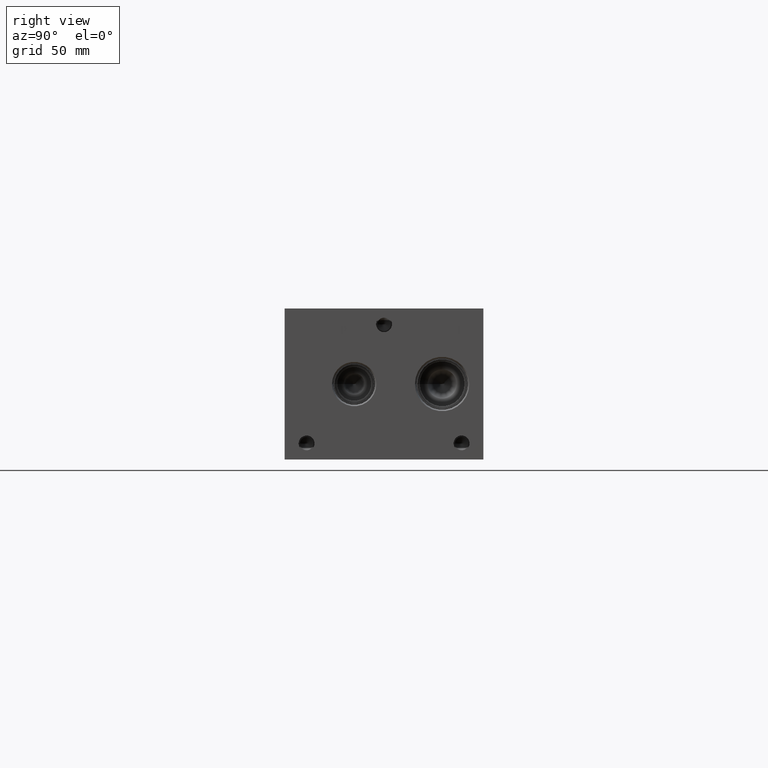
[diagram: clean part render]
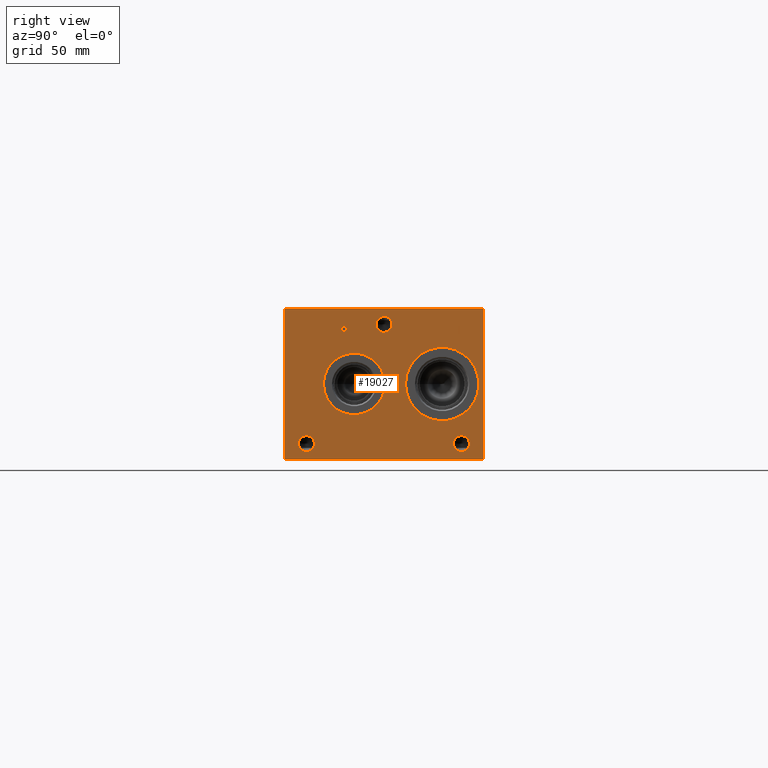
[diagram: same view with one face highlighted and labeled with its STEP entity id]
A machine part, right view. The second image highlights one B-rep face of the part: STEP entity #19027.
In plain terms, the highlighted planar face has unit normal (1, 0, 0).
Its self-contained STEP definition (entity closure, byte-faithful):
#578=CIRCLE('',#20039,29.2862);
#579=CIRCLE('',#20040,29.2862);
#580=CIRCLE('',#20041,24.5618);
#581=CIRCLE('',#20042,24.5618);
#582=CIRCLE('',#20043,6.35);
#583=CIRCLE('',#20044,6.35);
#584=CIRCLE('',#20045,6.35);
#585=CIRCLE('',#20046,6.35);
#586=CIRCLE('',#20047,6.35);
#587=CIRCLE('',#20048,6.35);
#1490=B_SPLINE_CURVE_WITH_KNOTS('',2,(#29221,#29222,#29223,#29224),
 .UNSPECIFIED.,.F.,.F.,(3,1,3),(0.,1.,2.),.UNSPECIFIED.);
#1492=B_SPLINE_CURVE_WITH_KNOTS('',2,(#29242,#29243,#29244,#29245),
 .UNSPECIFIED.,.F.,.F.,(3,1,3),(0.,1.,2.),.UNSPECIFIED.);
#1494=B_SPLINE_CURVE_WITH_KNOTS('',2,(#29291,#29292,#29293,#29294),
 .UNSPECIFIED.,.F.,.F.,(3,1,3),(0.,1.,2.),.UNSPECIFIED.);
#1496=B_SPLINE_CURVE_WITH_KNOTS('',2,(#29309,#29310,#29311,#29312),
 .UNSPECIFIED.,.F.,.F.,(3,1,3),(0.,1.,2.),.UNSPECIFIED.);
#1701=FACE_BOUND('',#3194,.T.);
#1702=FACE_BOUND('',#3195,.T.);
#1703=FACE_BOUND('',#3196,.T.);
#1704=FACE_BOUND('',#3197,.T.);
#1705=FACE_BOUND('',#3198,.T.);
#1706=FACE_BOUND('',#3199,.T.);
#1707=FACE_BOUND('',#3200,.T.);
#2084=FACE_OUTER_BOUND('',#3193,.T.);
#3193=EDGE_LOOP('',(#13643,#13644,#13645,#13646));
#3194=EDGE_LOOP('',(#13647,#13648));
#3195=EDGE_LOOP('',(#13649,#13650));
#3196=EDGE_LOOP('',(#13651,#13652));
#3197=EDGE_LOOP('',(#13653,#13654));
#3198=EDGE_LOOP('',(#13655,#13656));
#3199=EDGE_LOOP('',(#13657,#13658,#13659,#13660,#13661,#13662,#13663,#13664));
#3200=EDGE_LOOP('',(#13665,#13666,#13667,#13668,#13669,#13670,#13671,#13672,
#13673));
#4215=LINE('',#26430,#5881);
#4806=LINE('',#29254,#6472);
#4809=LINE('',#29260,#6475);
#4812=LINE('',#29266,#6478);
#4815=LINE('',#29272,#6481);
#4818=LINE('',#29278,#6484);
#4822=LINE('',#29320,#6488);
#4823=LINE('',#29322,#6489);
#4824=LINE('',#29323,#6490);
#4825=LINE('',#29346,#6491);
#4826=LINE('',#29348,#6492);
#4827=LINE('',#29350,#6493);
#4828=LINE('',#29352,#6494);
#4829=LINE('',#29354,#6495);
#4830=LINE('',#29356,#6496);
#4831=LINE('',#29358,#6497);
#4832=LINE('',#29359,#6498);
#5881=VECTOR('',#21537,10.);
#6472=VECTOR('',#22432,10.);
#6475=VECTOR('',#22437,10.);
#6478=VECTOR('',#22442,10.);
#6481=VECTOR('',#22447,10.);
#6484=VECTOR('',#22452,10.);
#6488=VECTOR('',#22460,10.);
#6489=VECTOR('',#22461,10.);
#6490=VECTOR('',#22462,10.);
#6491=VECTOR('',#22483,10.);
#6492=VECTOR('',#22484,10.);
#6493=VECTOR('',#22485,10.);
#6494=VECTOR('',#22486,10.);
#6495=VECTOR('',#22487,10.);
#6496=VECTOR('',#22488,10.);
#6497=VECTOR('',#22489,10.);
#6498=VECTOR('',#22490,10.);
#7536=VERTEX_POINT('',#26427);
#7537=VERTEX_POINT('',#26429);
#8176=VERTEX_POINT('',#29219);
#8177=VERTEX_POINT('',#29220);
#8180=VERTEX_POINT('',#29241);
#8182=VERTEX_POINT('',#29253);
#8184=VERTEX_POINT('',#29259);
#8186=VERTEX_POINT('',#29265);
#8188=VERTEX_POINT('',#29271);
#8190=VERTEX_POINT('',#29277);
#8192=VERTEX_POINT('',#29290);
#8194=VERTEX_POINT('',#29319);
#8195=VERTEX_POINT('',#29321);
#8196=VERTEX_POINT('',#29324);
#8197=VERTEX_POINT('',#29325);
#8198=VERTEX_POINT('',#29328);
#8199=VERTEX_POINT('',#29329);
#8200=VERTEX_POINT('',#29332);
#8201=VERTEX_POINT('',#29333);
#8202=VERTEX_POINT('',#29336);
#8203=VERTEX_POINT('',#29337);
#8204=VERTEX_POINT('',#29340);
#8205=VERTEX_POINT('',#29341);
#8206=VERTEX_POINT('',#29344);
#8207=VERTEX_POINT('',#29345);
#8208=VERTEX_POINT('',#29347);
#8209=VERTEX_POINT('',#29349);
#8210=VERTEX_POINT('',#29351);
#8211=VERTEX_POINT('',#29353);
#8212=VERTEX_POINT('',#29355);
#8213=VERTEX_POINT('',#29357);
#9476=EDGE_CURVE('',#7536,#7537,#4215,.T.);
#10293=EDGE_CURVE('',#8176,#8177,#1490,.T.);
#10297=EDGE_CURVE('',#8180,#8176,#1492,.T.);
#10300=EDGE_CURVE('',#8182,#8180,#4806,.T.);
#10303=EDGE_CURVE('',#8184,#8182,#4809,.T.);
#10306=EDGE_CURVE('',#8186,#8184,#4812,.T.);
#10309=EDGE_CURVE('',#8188,#8186,#4815,.T.);
#10312=EDGE_CURVE('',#8190,#8188,#4818,.T.);
#10315=EDGE_CURVE('',#8192,#8190,#1494,.T.);
#10318=EDGE_CURVE('',#8177,#8192,#1496,.T.);
#10320=EDGE_CURVE('',#7536,#8194,#4822,.T.);
#10321=EDGE_CURVE('',#8194,#8195,#4823,.T.);
#10322=EDGE_CURVE('',#7537,#8195,#4824,.T.);
#10323=EDGE_CURVE('',#8196,#8197,#578,.T.);
#10324=EDGE_CURVE('',#8197,#8196,#579,.T.);
#10325=EDGE_CURVE('',#8198,#8199,#580,.T.);
#10326=EDGE_CURVE('',#8199,#8198,#581,.T.);
#10327=EDGE_CURVE('',#8200,#8201,#582,.T.);
#10328=EDGE_CURVE('',#8201,#8200,#583,.T.);
#10329=EDGE_CURVE('',#8202,#8203,#584,.T.);
#10330=EDGE_CURVE('',#8203,#8202,#585,.T.);
#10331=EDGE_CURVE('',#8204,#8205,#586,.T.);
#10332=EDGE_CURVE('',#8205,#8204,#587,.T.);
#10333=EDGE_CURVE('',#8206,#8207,#4825,.T.);
#10334=EDGE_CURVE('',#8207,#8208,#4826,.T.);
#10335=EDGE_CURVE('',#8208,#8209,#4827,.T.);
#10336=EDGE_CURVE('',#8209,#8210,#4828,.T.);
#10337=EDGE_CURVE('',#8210,#8211,#4829,.T.);
#10338=EDGE_CURVE('',#8211,#8212,#4830,.T.);
#10339=EDGE_CURVE('',#8212,#8213,#4831,.T.);
#10340=EDGE_CURVE('',#8213,#8206,#4832,.T.);
#13643=ORIENTED_EDGE('',*,*,#10320,.T.);
#13644=ORIENTED_EDGE('',*,*,#10321,.T.);
#13645=ORIENTED_EDGE('',*,*,#10322,.F.);
#13646=ORIENTED_EDGE('',*,*,#9476,.F.);
#13647=ORIENTED_EDGE('',*,*,#10323,.T.);
#13648=ORIENTED_EDGE('',*,*,#10324,.T.);
#13649=ORIENTED_EDGE('',*,*,#10325,.T.);
#13650=ORIENTED_EDGE('',*,*,#10326,.T.);
#13651=ORIENTED_EDGE('',*,*,#10327,.T.);
#13652=ORIENTED_EDGE('',*,*,#10328,.T.);
#13653=ORIENTED_EDGE('',*,*,#10329,.T.);
#13654=ORIENTED_EDGE('',*,*,#10330,.T.);
#13655=ORIENTED_EDGE('',*,*,#10331,.T.);
#13656=ORIENTED_EDGE('',*,*,#10332,.T.);
#13657=ORIENTED_EDGE('',*,*,#10333,.T.);
#13658=ORIENTED_EDGE('',*,*,#10334,.T.);
#13659=ORIENTED_EDGE('',*,*,#10335,.T.);
#13660=ORIENTED_EDGE('',*,*,#10336,.T.);
#13661=ORIENTED_EDGE('',*,*,#10337,.T.);
#13662=ORIENTED_EDGE('',*,*,#10338,.T.);
#13663=ORIENTED_EDGE('',*,*,#10339,.T.);
#13664=ORIENTED_EDGE('',*,*,#10340,.T.);
#13665=ORIENTED_EDGE('',*,*,#10293,.T.);
#13666=ORIENTED_EDGE('',*,*,#10318,.T.);
#13667=ORIENTED_EDGE('',*,*,#10315,.T.);
#13668=ORIENTED_EDGE('',*,*,#10312,.T.);
#13669=ORIENTED_EDGE('',*,*,#10309,.T.);
#13670=ORIENTED_EDGE('',*,*,#10306,.T.);
#13671=ORIENTED_EDGE('',*,*,#10303,.T.);
#13672=ORIENTED_EDGE('',*,*,#10300,.T.);
#13673=ORIENTED_EDGE('',*,*,#10297,.T.);
#17851=PLANE('',#20038);
#19027=ADVANCED_FACE('',(#2084,#1701,#1702,#1703,#1704,#1705,#1706,#1707),
#17851,.T.);
#20038=AXIS2_PLACEMENT_3D('',#29318,#22458,#22459);
#20039=AXIS2_PLACEMENT_3D('',#29326,#22463,#22464);
#20040=AXIS2_PLACEMENT_3D('',#29327,#22465,#22466);
#20041=AXIS2_PLACEMENT_3D('',#29330,#22467,#22468);
#20042=AXIS2_PLACEMENT_3D('',#29331,#22469,#22470);
#20043=AXIS2_PLACEMENT_3D('',#29334,#22471,#22472);
#20044=AXIS2_PLACEMENT_3D('',#29335,#22473,#22474);
#20045=AXIS2_PLACEMENT_3D('',#29338,#22475,#22476);
#20046=AXIS2_PLACEMENT_3D('',#29339,#22477,#22478);
#20047=AXIS2_PLACEMENT_3D('',#29342,#22479,#22480);
#20048=AXIS2_PLACEMENT_3D('',#29343,#22481,#22482);
#21537=DIRECTION('',(0.,0.,1.));
#22432=DIRECTION('',(0.,1.,0.));
#22437=DIRECTION('',(0.,0.,1.));
#22442=DIRECTION('',(0.,-1.,0.));
#22447=DIRECTION('',(0.,0.,-1.));
#22452=DIRECTION('',(0.,-1.,0.));
#22458=DIRECTION('center_axis',(1.,0.,0.));
#22459=DIRECTION('ref_axis',(0.,1.,0.));
#22460=DIRECTION('',(0.,1.,0.));
#22461=DIRECTION('',(0.,0.,1.));
#22462=DIRECTION('',(0.,1.,0.));
#22463=DIRECTION('center_axis',(-1.,0.,0.));
#22464=DIRECTION('ref_axis',(0.,1.,0.));
#22465=DIRECTION('center_axis',(-1.,0.,0.));
#22466=DIRECTION('ref_axis',(0.,1.,0.));
#22467=DIRECTION('center_axis',(-1.,0.,0.));
#22468=DIRECTION('ref_axis',(0.,1.,0.));
#22469=DIRECTION('center_axis',(-1.,0.,0.));
#22470=DIRECTION('ref_axis',(0.,1.,0.));
#22471=DIRECTION('center_axis',(-1.,0.,0.));
#22472=DIRECTION('ref_axis',(0.,1.,0.));
#22473=DIRECTION('center_axis',(-1.,0.,0.));
#22474=DIRECTION('ref_axis',(0.,1.,0.));
#22475=DIRECTION('center_axis',(-1.,0.,0.));
#22476=DIRECTION('ref_axis',(0.,1.,0.));
#22477=DIRECTION('center_axis',(-1.,0.,0.));
#22478=DIRECTION('ref_axis',(0.,1.,0.));
#22479=DIRECTION('center_axis',(-1.,0.,0.));
#22480=DIRECTION('ref_axis',(0.,1.,0.));
#22481=DIRECTION('center_axis',(-1.,0.,0.));
#22482=DIRECTION('ref_axis',(0.,1.,0.));
#22483=DIRECTION('',(0.,-1.,0.));
#22484=DIRECTION('',(0.,0.,1.));
#22485=DIRECTION('',(0.,-1.,0.));
#22486=DIRECTION('',(0.,0.,1.));
#22487=DIRECTION('',(0.,1.,0.));
#22488=DIRECTION('',(0.,0.,-1.));
#22489=DIRECTION('',(0.,-1.,0.));
#22490=DIRECTION('',(0.,0.,-1.));
#26427=CARTESIAN_POINT('',(549.2496,0.,0.));
#26429=CARTESIAN_POINT('',(549.2496,0.,120.65));
#26430=CARTESIAN_POINT('',(549.2496,0.,0.));
#29219=CARTESIAN_POINT('',(549.2496,48.5537672023594,105.902768143971));
#29220=CARTESIAN_POINT('',(549.2496,49.310209654532,104.384737372604));
#29221=CARTESIAN_POINT('Ctrl Pts',(549.2496,48.5537672023594,105.902768143971));
#29222=CARTESIAN_POINT('Ctrl Pts',(549.2496,48.9088320268486,105.660912393956));
#29223=CARTESIAN_POINT('Ctrl Pts',(549.2496,49.310209654532,104.914761675827));
#29224=CARTESIAN_POINT('Ctrl Pts',(549.2496,49.310209654532,104.384737372604));
#29241=CARTESIAN_POINT('',(549.2496,46.8916521543883,106.298999904633));
#29242=CARTESIAN_POINT('Ctrl Pts',(549.2496,46.8916521543883,106.298999904633));
#29243=CARTESIAN_POINT('Ctrl Pts',(549.2496,47.4576975267624,106.298999904633));
#29244=CARTESIAN_POINT('Ctrl Pts',(549.2496,48.250161048086,106.113748691856));
#29245=CARTESIAN_POINT('Ctrl Pts',(549.2496,48.5537672023594,105.902768143971));
#29253=CARTESIAN_POINT('',(549.2496,45.2964333776978,106.298999904633));
#29254=CARTESIAN_POINT('',(549.2496,22.6482166888489,106.298999904633));
#29259=CARTESIAN_POINT('',(549.2496,45.2964333776978,99.949));
#29260=CARTESIAN_POINT('',(549.2496,45.2964333776978,49.9745));
#29265=CARTESIAN_POINT('',(549.2496,46.1403555692373,99.949));
#29266=CARTESIAN_POINT('',(549.2496,23.0701777846186,99.949));
#29271=CARTESIAN_POINT('',(549.2496,46.1403555692373,102.316098829928));
#29272=CARTESIAN_POINT('',(549.2496,46.1403555692373,51.1580494149639));
#29277=CARTESIAN_POINT('',(549.2496,46.8556310852372,102.316098829928));
#29278=CARTESIAN_POINT('',(549.2496,23.4278155426186,102.316098829928));
#29290=CARTESIAN_POINT('',(549.2496,48.7544560162011,102.97476980869));
#29291=CARTESIAN_POINT('Ctrl Pts',(549.2496,48.7544560162011,102.97476980869));
#29292=CARTESIAN_POINT('Ctrl Pts',(549.2496,48.4251205268198,102.650580186331));
#29293=CARTESIAN_POINT('Ctrl Pts',(549.2496,47.5348855320861,102.316098829928));
#29294=CARTESIAN_POINT('Ctrl Pts',(549.2496,46.8556310852372,102.316098829928));
#29309=CARTESIAN_POINT('Ctrl Pts',(549.2496,49.310209654532,104.384737372604));
#29310=CARTESIAN_POINT('Ctrl Pts',(549.2496,49.310209654532,103.973068010877));
#29311=CARTESIAN_POINT('Ctrl Pts',(549.2496,49.0168952343018,103.23206315977));
#29312=CARTESIAN_POINT('Ctrl Pts',(549.2496,48.7544560162011,102.97476980869));
#29318=CARTESIAN_POINT('Origin',(549.2496,0.,0.));
#29319=CARTESIAN_POINT('',(549.2496,158.75,0.));
#29320=CARTESIAN_POINT('',(549.2496,0.,0.));
#29321=CARTESIAN_POINT('',(549.2496,158.75,120.65));
#29322=CARTESIAN_POINT('',(549.2496,158.75,0.));
#29323=CARTESIAN_POINT('',(549.2496,0.,120.65));
#29324=CARTESIAN_POINT('',(549.2496,155.1178,60.325));
#29325=CARTESIAN_POINT('',(549.2496,96.5454,60.325));
#29326=CARTESIAN_POINT('Origin',(549.2496,125.8316,60.325));
#29327=CARTESIAN_POINT('Origin',(549.2496,125.8316,60.325));
#29328=CARTESIAN_POINT('',(549.2496,80.137,60.325));
#29329=CARTESIAN_POINT('',(549.2496,31.0134,60.325));
#29330=CARTESIAN_POINT('Origin',(549.2496,55.5752,60.325));
#29331=CARTESIAN_POINT('Origin',(549.2496,55.5752,60.325));
#29332=CARTESIAN_POINT('',(549.2496,85.725,107.95));
#29333=CARTESIAN_POINT('',(549.2496,73.025,107.95));
#29334=CARTESIAN_POINT('Origin',(549.2496,79.375,107.95));
#29335=CARTESIAN_POINT('Origin',(549.2496,79.375,107.95));
#29336=CARTESIAN_POINT('',(549.2496,147.6248,12.7));
#29337=CARTESIAN_POINT('',(549.2496,134.9248,12.7));
#29338=CARTESIAN_POINT('Origin',(549.2496,141.2748,12.7));
#29339=CARTESIAN_POINT('Origin',(549.2496,141.2748,12.7));
#29340=CARTESIAN_POINT('',(549.2496,23.8252,12.7));
#29341=CARTESIAN_POINT('',(549.2496,11.1252,12.7));
#29342=CARTESIAN_POINT('Origin',(549.2496,17.4752,12.7));
#29343=CARTESIAN_POINT('Origin',(549.2496,17.4752,12.7));
#29344=CARTESIAN_POINT('',(549.2496,139.722765271453,99.949));
#29345=CARTESIAN_POINT('',(549.2496,138.878843079914,99.949));
#29346=CARTESIAN_POINT('',(549.2496,69.8613826357265,99.949));
#29347=CARTESIAN_POINT('',(549.2496,138.878843079914,105.547703319482));
#29348=CARTESIAN_POINT('',(549.2496,138.878843079914,49.9745));
#29349=CARTESIAN_POINT('',(549.2496,136.748454132978,105.547703319482));
#29350=CARTESIAN_POINT('',(549.2496,69.4394215399568,105.547703319482));
#29351=CARTESIAN_POINT('',(549.2496,136.748454132978,106.298999904633));
#29352=CARTESIAN_POINT('',(549.2496,136.748454132978,52.7738516597408));
#29353=CARTESIAN_POINT('',(549.2496,141.853154218388,106.298999904633));
#29354=CARTESIAN_POINT('',(549.2496,68.3742270664892,106.298999904633));
#29355=CARTESIAN_POINT('',(549.2496,141.853154218388,105.547703319482));
#29356=CARTESIAN_POINT('',(549.2496,141.853154218388,53.1494999523163));
#29357=CARTESIAN_POINT('',(549.2496,139.722765271453,105.547703319482));
#29358=CARTESIAN_POINT('',(549.2496,70.926577109194,105.547703319482));
#29359=CARTESIAN_POINT('',(549.2496,139.722765271453,52.7738516597408));